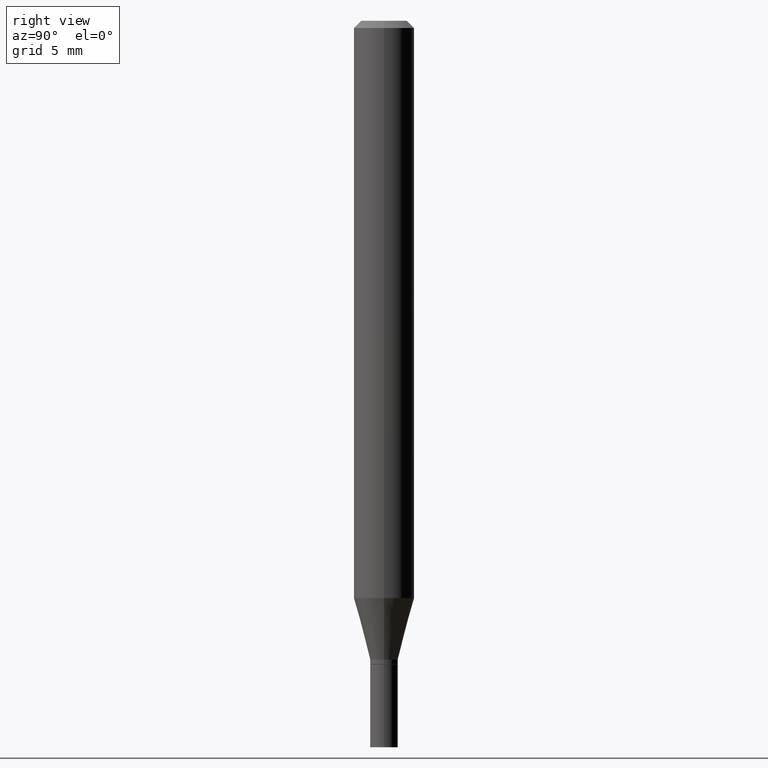
[diagram: clean part render]
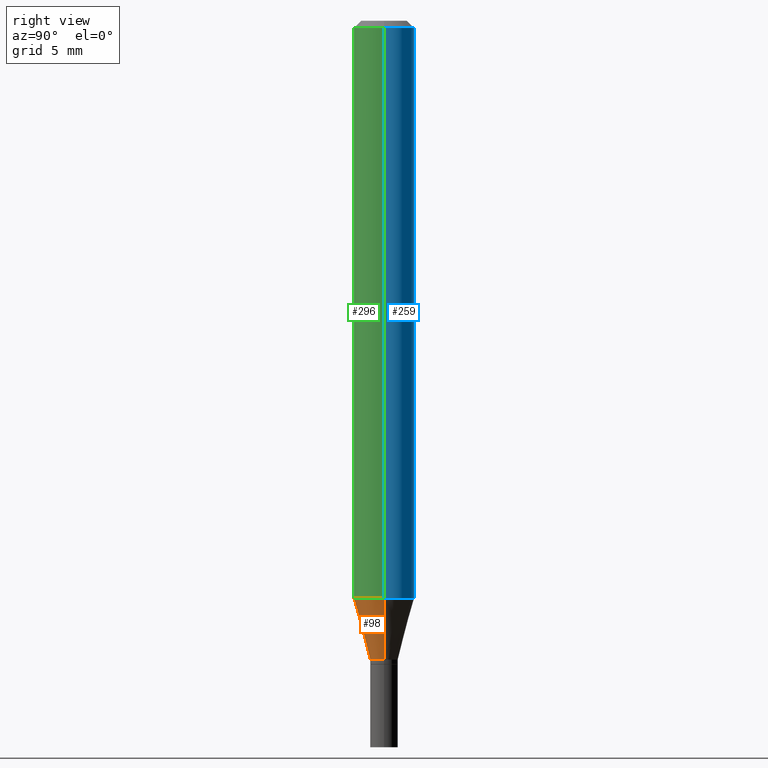
[diagram: same view with three faces highlighted in distinct colors, each labeled with its STEP entity id]
A machine part, right view with three faces highlighted in distinct colors.
Their STEP definitions:

[orange] entity #98 — the highlighted conical surface has half-angle 15 deg.
#11 = VECTOR ( 'NONE', #258, 39.37007874015748854 ) ;
#45 = DIRECTION ( 'NONE',  ( -2.445468806185136597E-29, 3.491481338843145583E-15, 1.000000000000000000 ) ) ;
#50 = CARTESIAN_POINT ( 'NONE',  ( -0.06250000000000000000, -3.718141560575843830E-15, -1.192110272542658223 ) ) ;
#59 = CIRCLE ( 'NONE', #120, 0.02849999999999991776 ) ;
#70 = CARTESIAN_POINT ( 'NONE',  ( 0.02849999999999991776, -4.804278322248167148E-15, -1.318999999999999950 ) ) ;
#74 = AXIS2_PLACEMENT_3D ( 'NONE', #152, #156, #78 ) ;
#77 = EDGE_CURVE ( 'NONE', #212, #251, #246, .T. ) ;
#78 = DIRECTION ( 'NONE',  ( 1.000000000000000000, -6.982962677686268288E-15, 0.000000000000000000 ) ) ;
#98 = ADVANCED_FACE ( 'NONE', ( #407 ), #208, .T. ) ;
#103 = CARTESIAN_POINT ( 'NONE',  ( 3.225573355358195400E-29, -4.605263885934108641E-15, -1.318999999999999950 ) ) ;
#113 = ORIENTED_EDGE ( 'NONE', *, *, #313, .T. ) ;
#116 = LINE ( 'NONE', #376, #11 ) ;
#120 = AXIS2_PLACEMENT_3D ( 'NONE', #103, #245, #174 ) ;
#137 = VERTEX_POINT ( 'NONE', #445 ) ;
#144 = LINE ( 'NONE', #289, #380 ) ;
#152 = CARTESIAN_POINT ( 'NONE',  ( 3.225573355358195400E-29, -4.605263885934108641E-15, -1.318999999999999950 ) ) ;
#156 = DIRECTION ( 'NONE',  ( -2.445468806185136597E-29, 3.491481338843145583E-15, 1.000000000000000000 ) ) ;
#159 = CARTESIAN_POINT ( 'NONE',  ( 2.915268485035931806E-29, -4.162230770425907235E-15, -1.192110272542658223 ) ) ;
#174 = DIRECTION ( 'NONE',  ( 1.000000000000000000, -6.982962677686268288E-15, 0.000000000000000000 ) ) ;
#177 = ORIENTED_EDGE ( 'NONE', *, *, #77, .F. ) ;
#182 = EDGE_CURVE ( 'NONE', #137, #212, #116, .T. ) ;
#208 = CONICAL_SURFACE ( 'NONE', #74, 0.02849999999999991776, 0.2617993877991499074 ) ;
#212 = VERTEX_POINT ( 'NONE', #50 ) ;
#217 = AXIS2_PLACEMENT_3D ( 'NONE', #159, #45, #299 ) ;
#245 = DIRECTION ( 'NONE',  ( -2.445468806185136597E-29, 3.491481338843145583E-15, 1.000000000000000000 ) ) ;
#246 = CIRCLE ( 'NONE', #217, 0.06250000000000000000 ) ;
#251 = VERTEX_POINT ( 'NONE', #434 ) ;
#254 = VERTEX_POINT ( 'NONE', #70 ) ;
#258 = DIRECTION ( 'NONE',  ( -0.2588190451025211836, 5.211531920934547886E-15, 0.9659258262890679791 ) ) ;
#281 = ORIENTED_EDGE ( 'NONE', *, *, #342, .T. ) ;
#289 = CARTESIAN_POINT ( 'NONE',  ( 0.02849999999999991776, -4.804278322248167148E-15, -1.318999999999999950 ) ) ;
#299 = DIRECTION ( 'NONE',  ( 1.000000000000000000, -6.982962677686270655E-15, 0.000000000000000000 ) ) ;
#313 = EDGE_CURVE ( 'NONE', #254, #251, #144, .T. ) ;
#342 = EDGE_CURVE ( 'NONE', #137, #254, #59, .T. ) ;
#353 = EDGE_LOOP ( 'NONE', ( #457, #281, #113, #177 ) ) ;
#376 = CARTESIAN_POINT ( 'NONE',  ( -0.02849999999999991776, -4.402759206242480303E-15, -1.318999999999999950 ) ) ;
#380 = VECTOR ( 'NONE', #437, 39.37007874015748854 ) ;
#407 = FACE_OUTER_BOUND ( 'NONE', #353, .T. ) ;
#434 = CARTESIAN_POINT ( 'NONE',  ( 0.06250000000000000000, -4.598665937781298116E-15, -1.192110272542658223 ) ) ;
#437 = DIRECTION ( 'NONE',  ( 0.2588190451025211836, 1.565188264969622559E-15, 0.9659258262890679791 ) ) ;
#445 = CARTESIAN_POINT ( 'NONE',  ( -0.02849999999999991776, -4.060450383409162461E-15, -1.318999999999999950 ) ) ;
#457 = ORIENTED_EDGE ( 'NONE', *, *, #182, .F. ) ;

[blue] entity #259 — the highlighted cylindrical surface (edge-blend (fillet) strip) has radius 1.5875 mm, axis along (-0, 0, 1).
#14 = CARTESIAN_POINT ( 'NONE',  ( 3.668203209277705088E-31, -5.237222008264718399E-17, -0.01499999999999999944 ) ) ;
#25 = ORIENTED_EDGE ( 'NONE', *, *, #57, .T. ) ;
#37 = CARTESIAN_POINT ( 'NONE',  ( 0.000000000000000000, 0.000000000000000000, 0.000000000000000000 ) ) ;
#47 = VECTOR ( 'NONE', #377, 39.37007874015748143 ) ;
#50 = CARTESIAN_POINT ( 'NONE',  ( -0.06250000000000000000, -3.718141560575843830E-15, -1.192110272542658223 ) ) ;
#53 = DIRECTION ( 'NONE',  ( -2.445468806185136877E-29, 3.491481338843145188E-15, 1.000000000000000000 ) ) ;
#57 = EDGE_CURVE ( 'NONE', #251, #212, #412, .T. ) ;
#58 = AXIS2_PLACEMENT_3D ( 'NONE', #14, #224, #123 ) ;
#117 = CARTESIAN_POINT ( 'NONE',  ( 0.06250000000000000000, -4.888073874380388472E-16, -0.01499999999999999944 ) ) ;
#123 = DIRECTION ( 'NONE',  ( 1.000000000000000000, -6.982962677686266711E-15, 0.000000000000000000 ) ) ;
#125 = LINE ( 'NONE', #157, #315 ) ;
#141 = EDGE_CURVE ( 'NONE', #146, #431, #179, .T. ) ;
#146 = VERTEX_POINT ( 'NONE', #117 ) ;
#149 = AXIS2_PLACEMENT_3D ( 'NONE', #37, #211, #311 ) ;
#155 = DIRECTION ( 'NONE',  ( 1.000000000000000000, -6.982962677686270655E-15, 0.000000000000000000 ) ) ;
#157 = CARTESIAN_POINT ( 'NONE',  ( 0.06250000000000000000, -4.364351673553916694E-16, 3.047610484872459871E-30 ) ) ;
#170 = ORIENTED_EDGE ( 'NONE', *, *, #141, .F. ) ;
#179 = CIRCLE ( 'NONE', #58, 0.06250000000000000000 ) ;
#185 = CARTESIAN_POINT ( 'NONE',  ( 2.915268485035931806E-29, -4.162230770425907235E-15, -1.192110272542658223 ) ) ;
#191 = DIRECTION ( 'NONE',  ( -2.445468806185136597E-29, 3.491481338843145583E-15, 1.000000000000000000 ) ) ;
#211 = DIRECTION ( 'NONE',  ( -2.445468806185136597E-29, 3.491481338843145583E-15, 1.000000000000000000 ) ) ;
#212 = VERTEX_POINT ( 'NONE', #50 ) ;
#213 = FACE_OUTER_BOUND ( 'NONE', #215, .T. ) ;
#215 = EDGE_LOOP ( 'NONE', ( #25, #464, #170, #436 ) ) ;
#224 = DIRECTION ( 'NONE',  ( -2.445468806185136597E-29, 3.491481338843145583E-15, 1.000000000000000000 ) ) ;
#232 = CARTESIAN_POINT ( 'NONE',  ( -0.06250000000000000000, 4.440892098500626162E-16, -3.074334431409316114E-30 ) ) ;
#248 = EDGE_CURVE ( 'NONE', #251, #146, #125, .T. ) ;
#251 = VERTEX_POINT ( 'NONE', #434 ) ;
#255 = CARTESIAN_POINT ( 'NONE',  ( -0.06250000000000000000, -1.663212285404214738E-15, -0.01499999999999999944 ) ) ;
#259 = ADVANCED_FACE ( 'NONE', ( #213 ), #277, .T. ) ;
#268 = LINE ( 'NONE', #232, #47 ) ;
#277 = CYLINDRICAL_SURFACE ( 'NONE', #149, 0.06250000000000000000 ) ;
#311 = DIRECTION ( 'NONE',  ( 1.000000000000000000, -6.982962677686266711E-15, 4.876176775795935793E-29 ) ) ;
#315 = VECTOR ( 'NONE', #53, 39.37007874015748143 ) ;
#351 = EDGE_CURVE ( 'NONE', #212, #431, #268, .T. ) ;
#377 = DIRECTION ( 'NONE',  ( -2.445468806185136877E-29, 3.491481338843145188E-15, 1.000000000000000000 ) ) ;
#412 = CIRCLE ( 'NONE', #418, 0.06250000000000000000 ) ;
#418 = AXIS2_PLACEMENT_3D ( 'NONE', #185, #191, #155 ) ;
#431 = VERTEX_POINT ( 'NONE', #255 ) ;
#434 = CARTESIAN_POINT ( 'NONE',  ( 0.06250000000000000000, -4.598665937781298116E-15, -1.192110272542658223 ) ) ;
#436 = ORIENTED_EDGE ( 'NONE', *, *, #248, .F. ) ;
#464 = ORIENTED_EDGE ( 'NONE', *, *, #351, .T. ) ;

[green] entity #296 — the highlighted cylindrical surface (edge-blend (fillet) strip) has radius 1.5875 mm, axis along (-0, 0, 1).
#3 = CYLINDRICAL_SURFACE ( 'NONE', #194, 0.06250000000000000000 ) ;
#20 = ORIENTED_EDGE ( 'NONE', *, *, #453, .F. ) ;
#30 = ORIENTED_EDGE ( 'NONE', *, *, #77, .T. ) ;
#45 = DIRECTION ( 'NONE',  ( -2.445468806185136597E-29, 3.491481338843145583E-15, 1.000000000000000000 ) ) ;
#47 = VECTOR ( 'NONE', #377, 39.37007874015748143 ) ;
#50 = CARTESIAN_POINT ( 'NONE',  ( -0.06250000000000000000, -3.718141560575843830E-15, -1.192110272542658223 ) ) ;
#53 = DIRECTION ( 'NONE',  ( -2.445468806185136877E-29, 3.491481338843145188E-15, 1.000000000000000000 ) ) ;
#73 = ORIENTED_EDGE ( 'NONE', *, *, #248, .T. ) ;
#76 = AXIS2_PLACEMENT_3D ( 'NONE', #99, #403, #147 ) ;
#77 = EDGE_CURVE ( 'NONE', #212, #251, #246, .T. ) ;
#99 = CARTESIAN_POINT ( 'NONE',  ( 3.668203209277705088E-31, -5.237222008264718399E-17, -0.01499999999999999944 ) ) ;
#117 = CARTESIAN_POINT ( 'NONE',  ( 0.06250000000000000000, -4.888073874380388472E-16, -0.01499999999999999944 ) ) ;
#125 = LINE ( 'NONE', #157, #315 ) ;
#138 = DIRECTION ( 'NONE',  ( -2.445468806185136597E-29, 3.491481338843145583E-15, 1.000000000000000000 ) ) ;
#146 = VERTEX_POINT ( 'NONE', #117 ) ;
#147 = DIRECTION ( 'NONE',  ( 1.000000000000000000, -6.982962677686266711E-15, 0.000000000000000000 ) ) ;
#157 = CARTESIAN_POINT ( 'NONE',  ( 0.06250000000000000000, -4.364351673553916694E-16, 3.047610484872459871E-30 ) ) ;
#159 = CARTESIAN_POINT ( 'NONE',  ( 2.915268485035931806E-29, -4.162230770425907235E-15, -1.192110272542658223 ) ) ;
#194 = AXIS2_PLACEMENT_3D ( 'NONE', #314, #138, #207 ) ;
#207 = DIRECTION ( 'NONE',  ( 1.000000000000000000, -6.982962677686266711E-15, 4.876176775795935793E-29 ) ) ;
#212 = VERTEX_POINT ( 'NONE', #50 ) ;
#217 = AXIS2_PLACEMENT_3D ( 'NONE', #159, #45, #299 ) ;
#232 = CARTESIAN_POINT ( 'NONE',  ( -0.06250000000000000000, 4.440892098500626162E-16, -3.074334431409316114E-30 ) ) ;
#246 = CIRCLE ( 'NONE', #217, 0.06250000000000000000 ) ;
#248 = EDGE_CURVE ( 'NONE', #251, #146, #125, .T. ) ;
#251 = VERTEX_POINT ( 'NONE', #434 ) ;
#255 = CARTESIAN_POINT ( 'NONE',  ( -0.06250000000000000000, -1.663212285404214738E-15, -0.01499999999999999944 ) ) ;
#268 = LINE ( 'NONE', #232, #47 ) ;
#271 = CIRCLE ( 'NONE', #76, 0.06250000000000000000 ) ;
#288 = ORIENTED_EDGE ( 'NONE', *, *, #351, .F. ) ;
#296 = ADVANCED_FACE ( 'NONE', ( #322 ), #3, .T. ) ;
#299 = DIRECTION ( 'NONE',  ( 1.000000000000000000, -6.982962677686270655E-15, 0.000000000000000000 ) ) ;
#314 = CARTESIAN_POINT ( 'NONE',  ( 0.000000000000000000, 0.000000000000000000, 0.000000000000000000 ) ) ;
#315 = VECTOR ( 'NONE', #53, 39.37007874015748143 ) ;
#322 = FACE_OUTER_BOUND ( 'NONE', #383, .T. ) ;
#351 = EDGE_CURVE ( 'NONE', #212, #431, #268, .T. ) ;
#377 = DIRECTION ( 'NONE',  ( -2.445468806185136877E-29, 3.491481338843145188E-15, 1.000000000000000000 ) ) ;
#383 = EDGE_LOOP ( 'NONE', ( #288, #30, #73, #20 ) ) ;
#403 = DIRECTION ( 'NONE',  ( -2.445468806185136597E-29, 3.491481338843145583E-15, 1.000000000000000000 ) ) ;
#431 = VERTEX_POINT ( 'NONE', #255 ) ;
#434 = CARTESIAN_POINT ( 'NONE',  ( 0.06250000000000000000, -4.598665937781298116E-15, -1.192110272542658223 ) ) ;
#453 = EDGE_CURVE ( 'NONE', #431, #146, #271, .T. ) ;